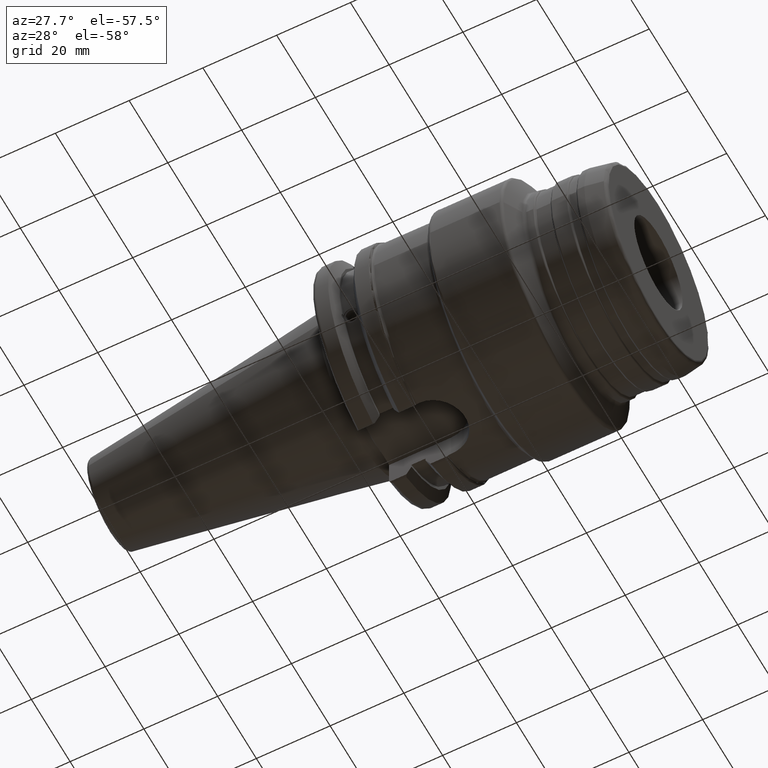
[diagram: clean part render]
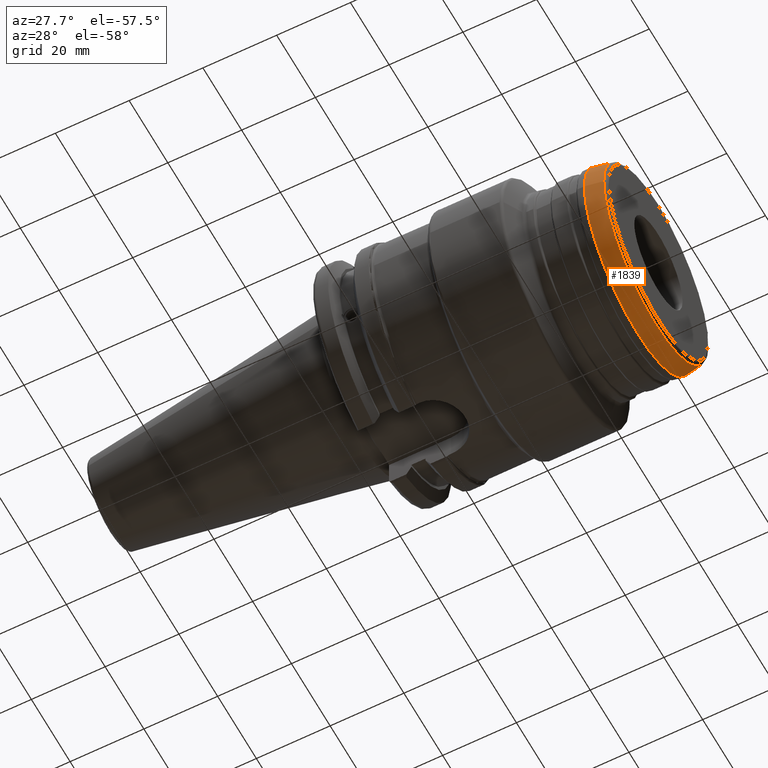
[diagram: same view with one face highlighted and labeled with its STEP entity id]
A machine part, auxiliary view. The second image highlights one B-rep face of the part: STEP entity #1839.
In plain terms, the highlighted conical surface has half-angle 10 deg.
Its self-contained STEP definition (entity closure, byte-faithful):
#137=CONICAL_SURFACE('',#2025,27.,0.174532925199432);
#160=LINE('',#2938,#253);
#253=VECTOR('',#2372,27.);
#393=FACE_OUTER_BOUND('',#499,.T.);
#499=EDGE_LOOP('',(#1342,#1343,#1344,#1345,#1346));
#629=CIRCLE('',#1989,27.5);
#653=CIRCLE('',#2023,26.6457081218349);
#654=CIRCLE('',#2024,26.6457081218349);
#753=VERTEX_POINT('',#2876);
#771=VERTEX_POINT('',#2932);
#772=VERTEX_POINT('',#2934);
#957=EDGE_CURVE('',#753,#753,#629,.T.);
#986=EDGE_CURVE('',#771,#772,#653,.T.);
#987=EDGE_CURVE('',#772,#771,#654,.T.);
#988=EDGE_CURVE('',#772,#753,#160,.T.);
#1342=ORIENTED_EDGE('',*,*,#987,.F.);
#1343=ORIENTED_EDGE('',*,*,#988,.T.);
#1344=ORIENTED_EDGE('',*,*,#957,.T.);
#1345=ORIENTED_EDGE('',*,*,#988,.F.);
#1346=ORIENTED_EDGE('',*,*,#986,.F.);
#1839=ADVANCED_FACE('',(#393),#137,.T.);
#1989=AXIS2_PLACEMENT_3D('',#2877,#2293,#2294);
#2023=AXIS2_PLACEMENT_3D('',#2935,#2366,#2367);
#2024=AXIS2_PLACEMENT_3D('',#2936,#2368,#2369);
#2025=AXIS2_PLACEMENT_3D('',#2937,#2370,#2371);
#2293=DIRECTION('center_axis',(1.,0.,0.));
#2294=DIRECTION('ref_axis',(0.,0.,-1.));
#2366=DIRECTION('center_axis',(1.,0.,0.));
#2367=DIRECTION('ref_axis',(0.,-1.,3.06161699786838E-17));
#2368=DIRECTION('center_axis',(1.,0.,0.));
#2369=DIRECTION('ref_axis',(0.,-1.,3.06161699786838E-17));
#2370=DIRECTION('center_axis',(-1.,0.,0.));
#2371=DIRECTION('ref_axis',(0.,1.,0.));
#2372=DIRECTION('',(-0.984807753012208,-0.173648177666929,-2.12657684957576E-17));
#2876=CARTESIAN_POINT('',(74.8287181803823,-27.5,-3.36777869765522E-15));
#2877=CARTESIAN_POINT('Origin',(74.8287181803823,0.,0.));
#2932=CARTESIAN_POINT('',(79.6736481776669,-3.26315811624198E-15,26.6457081218349));
#2934=CARTESIAN_POINT('',(79.6736481776669,-26.6457081218349,-3.26315811624198E-15));
#2935=CARTESIAN_POINT('Origin',(79.6736481776669,0.,-4.07894764530247E-15));
#2936=CARTESIAN_POINT('Origin',(79.6736481776669,0.,-4.07894764530247E-15));
#2937=CARTESIAN_POINT('Origin',(77.6643590901911,0.,0.));
#2938=CARTESIAN_POINT('',(77.6643590901911,-27.,-3.30654635769785E-15));